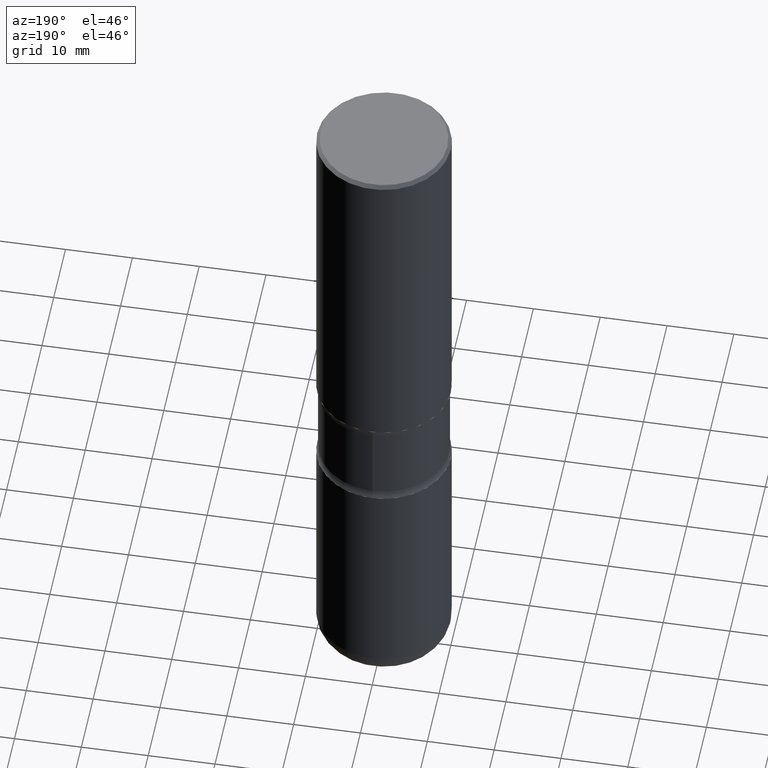
[diagram: clean part render]
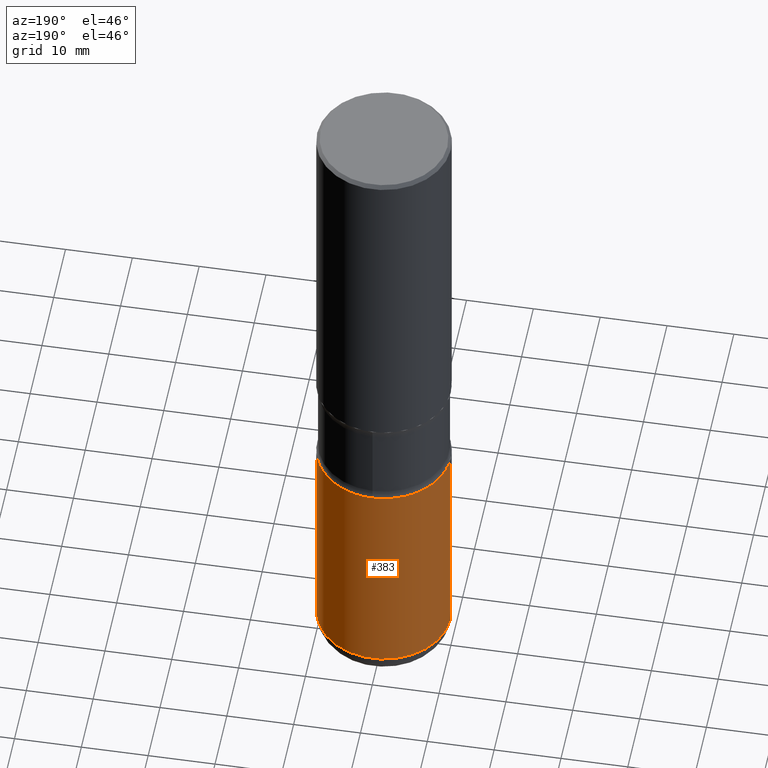
[diagram: same view with one face highlighted and labeled with its STEP entity id]
A machine part, auxiliary view. The second image highlights one B-rep face of the part: STEP entity #383.
In plain terms, the highlighted cylindrical surface (partial cylindrical patch) has radius 10 mm, axis along (-0, 0, 1).
Its self-contained STEP definition (entity closure, byte-faithful):
#1 = ORIENTED_EDGE ( 'NONE', *, *, #185, .F. ) ;
#5 = DIRECTION ( 'NONE',  ( -2.445468806185136877E-29, 3.491481338843145188E-15, 1.000000000000000000 ) ) ;
#6 = ORIENTED_EDGE ( 'NONE', *, *, #102, .F. ) ;
#19 = VECTOR ( 'NONE', #5, 39.37007874015748143 ) ;
#30 = AXIS2_PLACEMENT_3D ( 'NONE', #106, #228, #396 ) ;
#46 = CIRCLE ( 'NONE', #30, 0.3937000000000003830 ) ;
#101 = VECTOR ( 'NONE', #511, 39.37007874015748143 ) ;
#102 = EDGE_CURVE ( 'NONE', #431, #109, #372, .T. ) ;
#106 = CARTESIAN_POINT ( 'NONE',  ( 9.627810689950881427E-29, -1.374596203102546184E-14, -3.936999999999999389 ) ) ;
#109 = VERTEX_POINT ( 'NONE', #335 ) ;
#111 = ORIENTED_EDGE ( 'NONE', *, *, #226, .T. ) ;
#129 = LINE ( 'NONE', #304, #19 ) ;
#136 = CARTESIAN_POINT ( 'NONE',  ( -0.3937000000000002164, -8.611706820250229288E-15, -2.598399999999999821 ) ) ;
#162 = VERTEX_POINT ( 'NONE', #136 ) ;
#176 = FACE_OUTER_BOUND ( 'NONE', #379, .T. ) ;
#185 = EDGE_CURVE ( 'NONE', #109, #162, #214, .T. ) ;
#195 = DIRECTION ( 'NONE',  ( -2.445468806185136597E-29, 3.491481338843145583E-15, 1.000000000000000000 ) ) ;
#214 = CIRCLE ( 'NONE', #533, 0.3937000000000002164 ) ;
#219 = CARTESIAN_POINT ( 'NONE',  ( 0.3937000000000002164, -1.649515443723054663E-14, -3.936999999999999389 ) ) ;
#221 = CARTESIAN_POINT ( 'NONE',  ( 0.000000000000000000, 0.000000000000000000, 0.000000000000000000 ) ) ;
#226 = EDGE_CURVE ( 'NONE', #431, #257, #46, .T. ) ;
#228 = DIRECTION ( 'NONE',  ( -2.445468806185136597E-29, 3.491481338843145583E-15, 1.000000000000000000 ) ) ;
#257 = VERTEX_POINT ( 'NONE', #497 ) ;
#304 = CARTESIAN_POINT ( 'NONE',  ( -0.3937000000000002720, 2.797406750687516364E-15, -1.936584745033358137E-29 ) ) ;
#335 = CARTESIAN_POINT ( 'NONE',  ( 0.3937000000000002164, -1.182145751705511584E-14, -2.598399999999999821 ) ) ;
#342 = CARTESIAN_POINT ( 'NONE',  ( 0.3937000000000002720, -2.749192406205085189E-15, 1.919750796630861293E-29 ) ) ;
#347 = CYLINDRICAL_SURFACE ( 'NONE', #447, 0.3937000000000002720 ) ;
#372 = LINE ( 'NONE', #342, #101 ) ;
#373 = ORIENTED_EDGE ( 'NONE', *, *, #378, .T. ) ;
#378 = EDGE_CURVE ( 'NONE', #257, #162, #129, .T. ) ;
#379 = EDGE_LOOP ( 'NONE', ( #111, #373, #1, #6 ) ) ;
#383 = ADVANCED_FACE ( 'NONE', ( #176 ), #347, .T. ) ;
#396 = DIRECTION ( 'NONE',  ( 1.000000000000000000, -6.982962677686266711E-15, 0.000000000000000000 ) ) ;
#431 = VERTEX_POINT ( 'NONE', #219 ) ;
#432 = DIRECTION ( 'NONE',  ( -2.445468806185136597E-29, 3.491481338843145583E-15, 1.000000000000000000 ) ) ;
#447 = AXIS2_PLACEMENT_3D ( 'NONE', #221, #432, #469 ) ;
#469 = DIRECTION ( 'NONE',  ( 1.000000000000000000, -6.982962677686266711E-15, 4.876176775795935793E-29 ) ) ;
#497 = CARTESIAN_POINT ( 'NONE',  ( -0.3937000000000002164, -1.094855528033794626E-14, -3.936999999999999389 ) ) ;
#507 = DIRECTION ( 'NONE',  ( 1.000000000000000000, -6.982962677686269866E-15, 0.000000000000000000 ) ) ;
#511 = DIRECTION ( 'NONE',  ( -2.445468806185136877E-29, 3.491481338843145188E-15, 1.000000000000000000 ) ) ;
#530 = CARTESIAN_POINT ( 'NONE',  ( 6.354306145991457514E-29, -9.072265110850029467E-15, -2.598399999999999821 ) ) ;
#533 = AXIS2_PLACEMENT_3D ( 'NONE', #530, #195, #507 ) ;